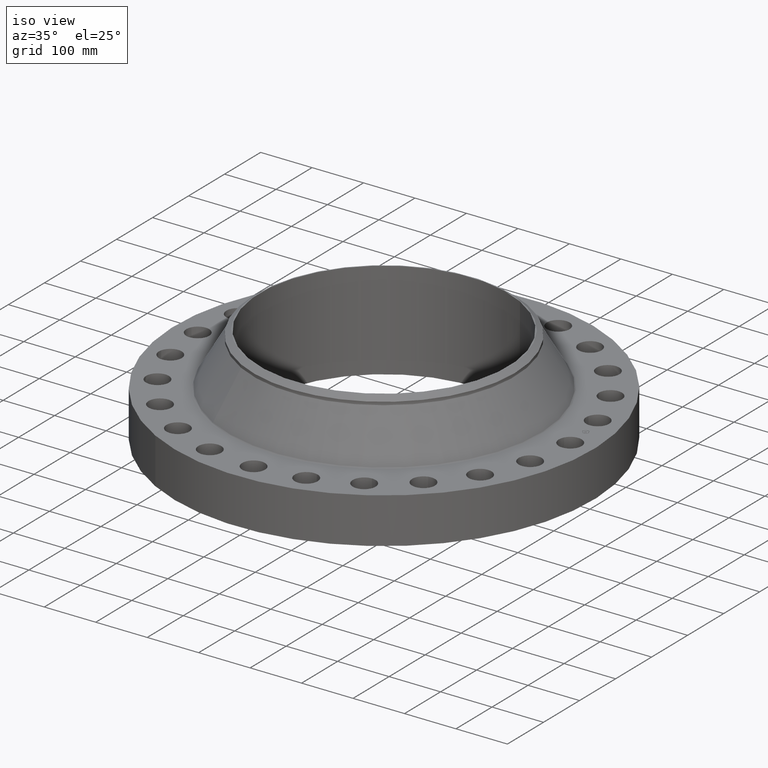
[diagram: clean part render]
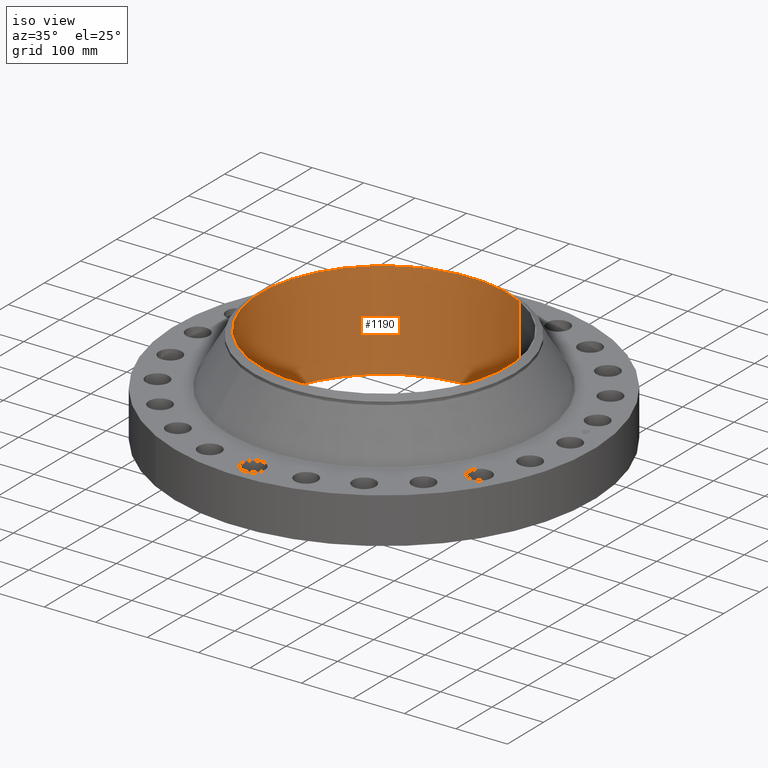
[diagram: same view with one face highlighted and labeled with its STEP entity id]
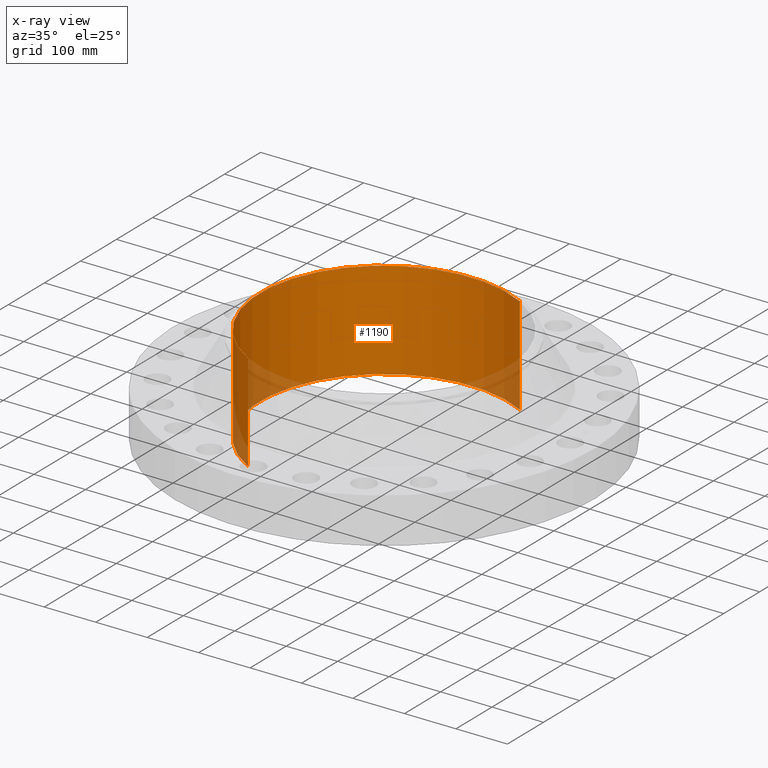
[diagram: x-ray of the same camera — body ghosted, the highlighted face saturated]
A machine part, iso view. The second image highlights one B-rep face of the part: STEP entity #1190.
The next image is the same camera in x-ray: the body ghosted, the highlighted face saturated — about 9% of this face is hidden behind the body in this view.
In plain terms, the highlighted cylindrical surface (partial cylindrical patch) has radius 241.3 mm, axis along (0, 0, -1).
Its self-contained STEP definition (entity closure, byte-faithful):
#174=AXIS2_PLACEMENT_3D('Circle Axis2P3D',#172,#173,$) ;
#1177=AXIS2_PLACEMENT_3D('Cylinder Axis2P3D',#1174,#1175,#1176) ;
#1181=AXIS2_PLACEMENT_3D('Circle Axis2P3D',#1179,#1180,$) ;
#167=CARTESIAN_POINT('Vertex',(4.55454261676,8.33703433799,9.9990706878E-012)) ;
#169=CARTESIAN_POINT('Vertex',(-4.55454261676,-8.33703433799,-7.04947911069E-014)) ;
#172=CARTESIAN_POINT('Axis2P3D Location',(-3.35689481461E-015,1.0665973791E-011,0.)) ;
#1145=CARTESIAN_POINT('Vertex',(4.55454261673,8.33703433801,7.50000000003)) ;
#1147=CARTESIAN_POINT('Vertex',(-4.55454261673,-8.33703433801,7.50000000003)) ;
#1150=CARTESIAN_POINT('Line Origine',(4.55454261676,8.33703433799,3.75000000001)) ;
#1155=CARTESIAN_POINT('Line Origine',(-4.55454261676,-8.33703433799,3.75000000001)) ;
#1174=CARTESIAN_POINT('Axis2P3D Location',(0.,0.,3.75000000001)) ;
#1179=CARTESIAN_POINT('Axis2P3D Location',(0.,0.,7.50000000003)) ;
#173=DIRECTION('Axis2P3D Direction',(0.,0.,-0.0393700787402)) ;
#1151=DIRECTION('Vector Direction',(0.,0.,-0.0393700787402)) ;
#1156=DIRECTION('Vector Direction',(0.,0.,-0.0393700787402)) ;
#1175=DIRECTION('Axis2P3D Direction',(0.,0.,-0.0393700787402)) ;
#1176=DIRECTION('Axis2P3D XDirection',(-0.0188750212049,-0.0345504945626,0.)) ;
#1180=DIRECTION('Axis2P3D Direction',(0.,0.,-0.0393700787402)) ;
#1152=VECTOR('Line Direction',#1151,0.0393700787402) ;
#1157=VECTOR('Line Direction',#1156,0.0393700787402) ;
#1185=ORIENTED_EDGE('',*,*,#1183,.F.) ;
#1186=ORIENTED_EDGE('',*,*,#1159,.T.) ;
#1187=ORIENTED_EDGE('',*,*,#176,.T.) ;
#1188=ORIENTED_EDGE('',*,*,#1154,.F.) ;
#1190=ADVANCED_FACE('PartBody',(#1189),#1178,.F.) ;
#175=CIRCLE('generated circle',#174,9.50000000004) ;
#1182=CIRCLE('generated circle',#1181,9.50000000004) ;
#1178=CYLINDRICAL_SURFACE('generated cylinder',#1177,9.50000000004) ;
#176=EDGE_CURVE('',#170,#168,#175,.T.) ;
#1154=EDGE_CURVE('',#1146,#168,#1153,.T.) ;
#1159=EDGE_CURVE('',#1148,#170,#1158,.T.) ;
#1183=EDGE_CURVE('',#1148,#1146,#1182,.T.) ;
#1184=EDGE_LOOP('',(#1185,#1186,#1187,#1188)) ;
#1189=FACE_OUTER_BOUND('',#1184,.T.) ;
#1153=LINE('Line',#1150,#1152) ;
#1158=LINE('Line',#1155,#1157) ;
#168=VERTEX_POINT('',#167) ;
#170=VERTEX_POINT('',#169) ;
#1146=VERTEX_POINT('',#1145) ;
#1148=VERTEX_POINT('',#1147) ;